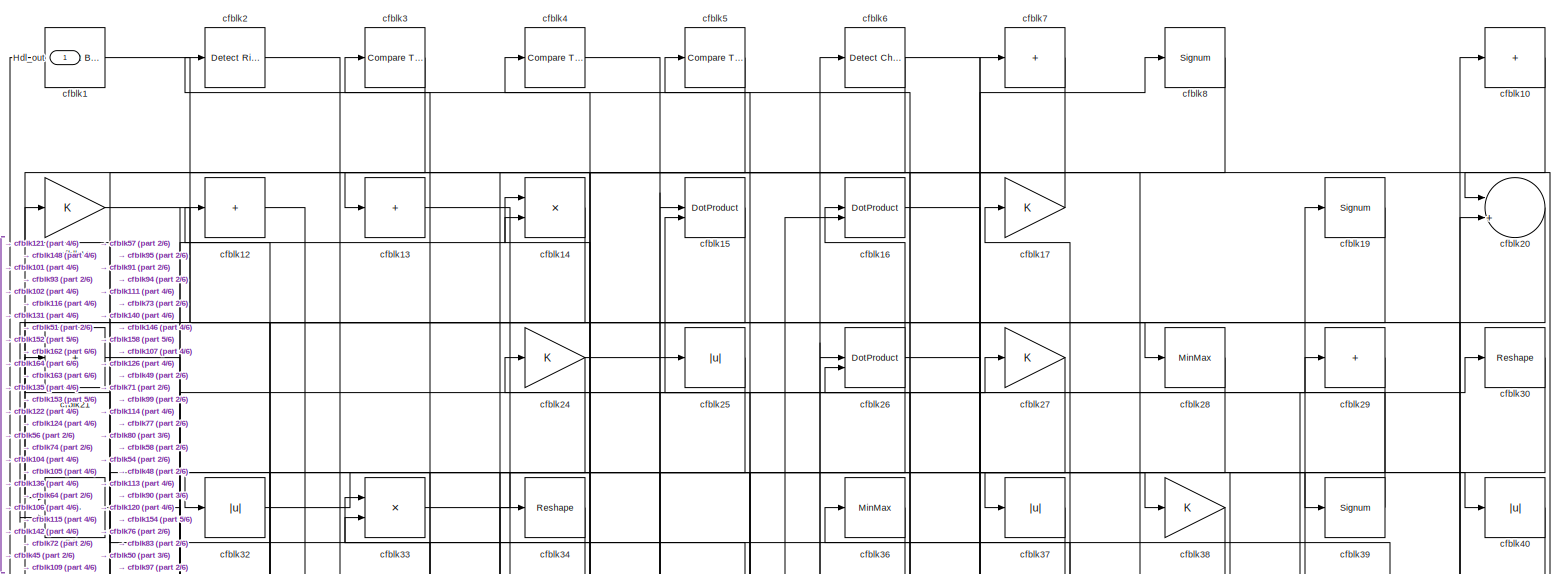
[diagram: root canvas - part 1/6, full width, top band]
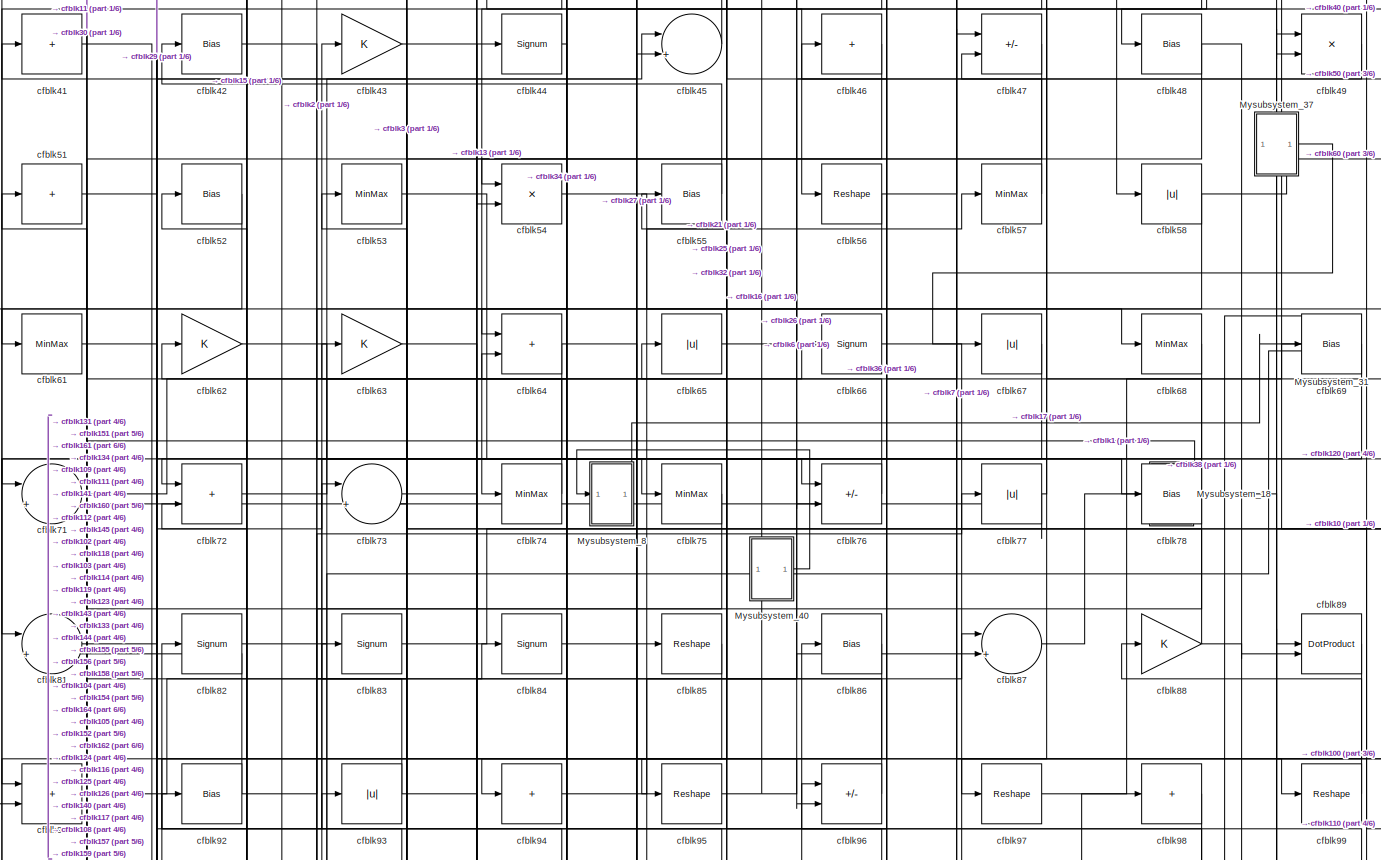
[diagram: root canvas - part 2/6, full width, middle band]
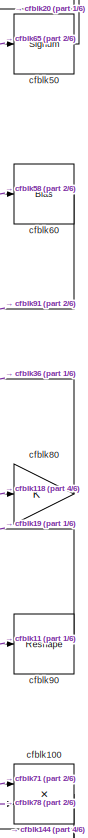
[diagram: root canvas - part 3/6, middle right region]
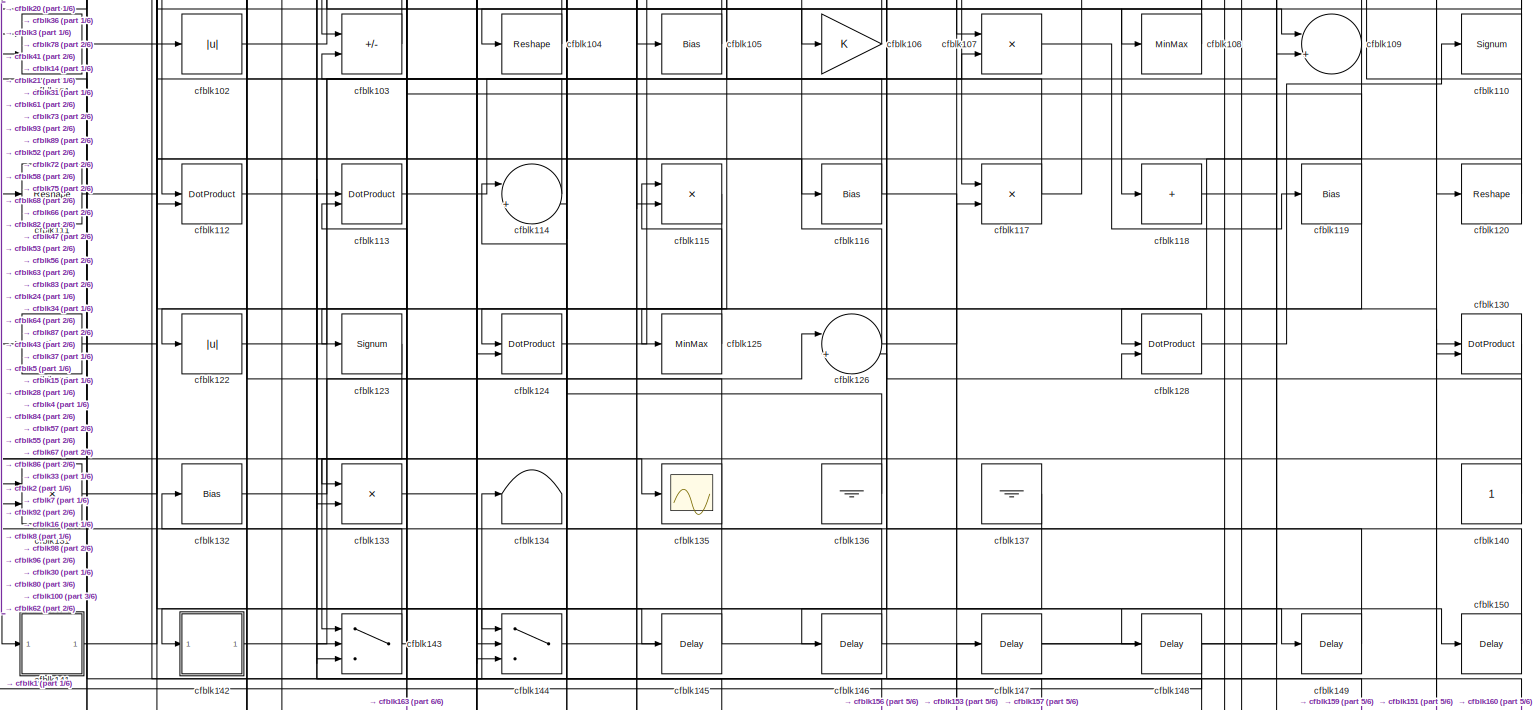
[diagram: root canvas - part 4/6, full width, bottom band]
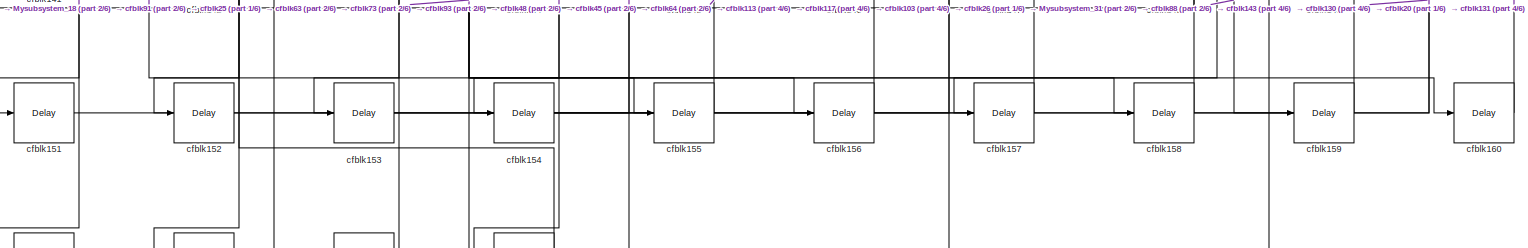
[diagram: root canvas - part 5/6, full width, bottom band]
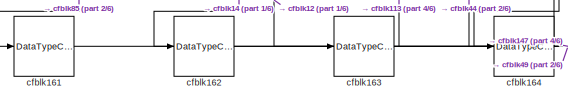
[diagram: root canvas - part 6/6, bottom left region]
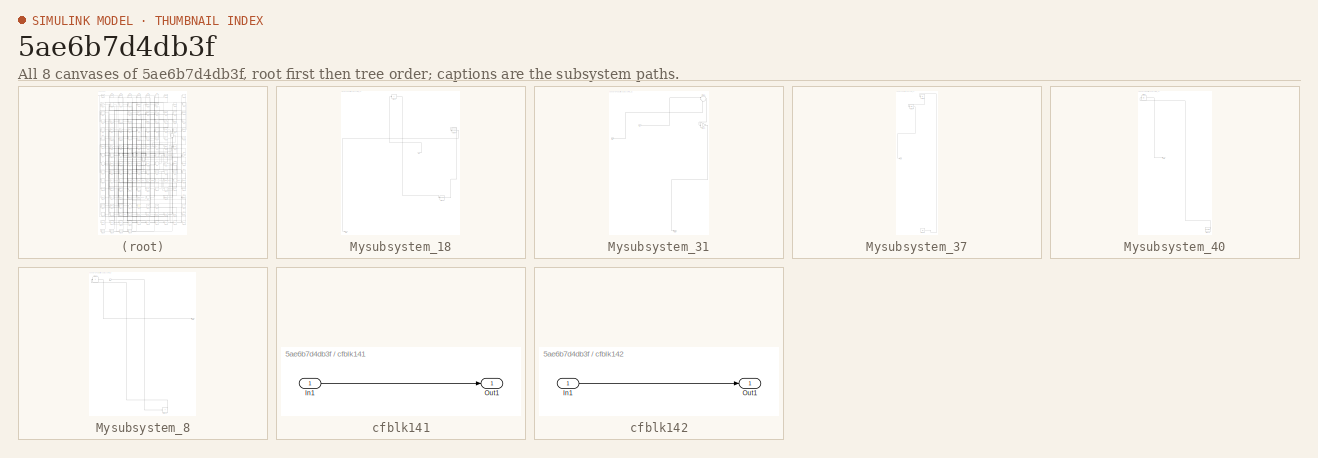
[diagram: thumbnail index - all 8 canvases of the model, root first then tree order]
MODEL slx_5ae6b7d4db3f
KIND model
CONFIG AbsTol = auto
CONFIG EnableMultiTasking = off
CONFIG FixedStep = auto
CONFIG MaxStep = auto
CONFIG MinStep = auto
CONFIG RelTol = 1e-3
CONFIG SampleTimeConstraint = Unconstrained
CONFIG SolverName = VariableStepAuto
CONFIG StartTime = 0.0
CONFIG StopTime = 10.0
BLOCK [Outport] Hdl_out
  OutDataTypeStr = uint8
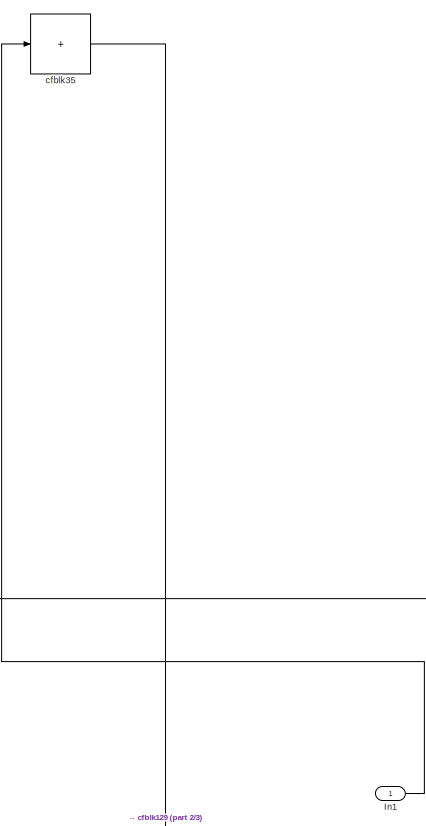
[diagram: Mysubsystem_18 - part 1/3, top center region]
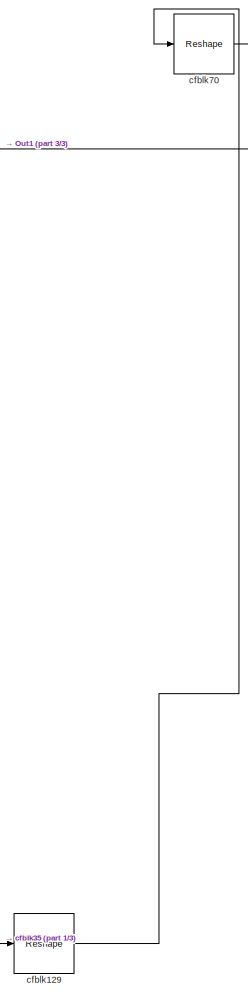
[diagram: Mysubsystem_18 - part 2/3, middle right region]
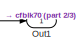
[diagram: Mysubsystem_18 - part 3/3, bottom left region]
BLOCK [SubSystem] Mysubsystem_18
  RTWFcnName = Mysubsystem_18
  RTWFcnNameOpts = User specified
  RTWFileNameOpts = Use function name
  RTWSystemCode = Reusable function
  TreatAsAtomicUnit = on
BLOCK [Inport] Mysubsystem_18/In1
BLOCK [Outport] Mysubsystem_18/Out1
BLOCK [Reshape] Mysubsystem_18/cfblk129
BLOCK [Sum] Mysubsystem_18/cfblk35
  IconShape = rectangular
  Inputs = +
BLOCK [Reshape] Mysubsystem_18/cfblk70
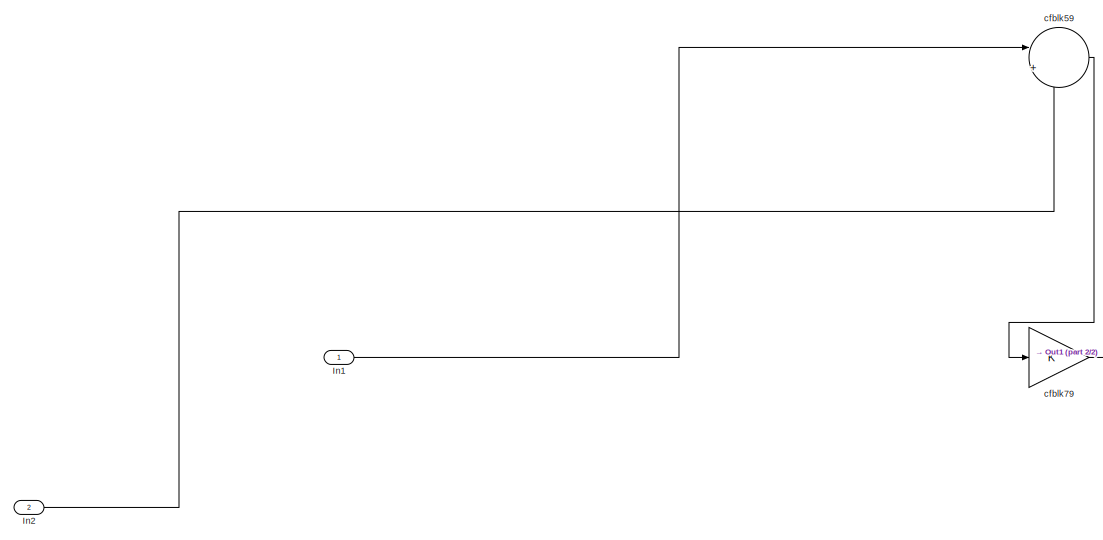
[diagram: Mysubsystem_31 - part 1/2, full width, top band]
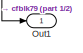
[diagram: Mysubsystem_31 - part 2/2, bottom center region]
BLOCK [SubSystem] Mysubsystem_31
  RTWFcnName = Mysubsystem_31
  RTWFcnNameOpts = User specified
  RTWFileNameOpts = Use function name
  RTWSystemCode = Reusable function
  TreatAsAtomicUnit = on
BLOCK [Inport] Mysubsystem_31/In1
BLOCK [Inport] Mysubsystem_31/In2
  Port = 2
BLOCK [Outport] Mysubsystem_31/Out1
BLOCK [Sum] Mysubsystem_31/cfblk59
  Inputs = |++
BLOCK [Gain] Mysubsystem_31/cfblk79
BLOCK [SubSystem] Mysubsystem_37
  RTWFcnName = Mysubsystem_37
  RTWFcnNameOpts = User specified
  RTWFileNameOpts = Use function name
  RTWSystemCode = Reusable function
  TreatAsAtomicUnit = on
BLOCK [Outport] Mysubsystem_37/Out1
BLOCK [Ground] Mysubsystem_37/cfblk139
BLOCK [Bias] Mysubsystem_37/cfblk18
  Bias = 0.0
  SaturateOnIntegerOverflow = off
BLOCK [Abs] Mysubsystem_37/cfblk9
  SaturateOnIntegerOverflow = off
BLOCK [SubSystem] Mysubsystem_40
  RTWFcnName = Mysubsystem_40
  RTWFcnNameOpts = User specified
  RTWFileNameOpts = Use function name
  RTWSystemCode = Reusable function
  TreatAsAtomicUnit = on
BLOCK [Outport] Mysubsystem_40/Out1
BLOCK [Reference] Mysubsystem_40/cfblk138  REF=hdlsllib/Sources/Counter
Free-Running
  SourceBlock = hdlsllib/Sources/Counter\nFree-Running
  SourceType = Counter Free-Running
BLOCK [Abs] Mysubsystem_40/cfblk23
  SaturateOnIntegerOverflow = off
BLOCK [SubSystem] Mysubsystem_8
  RTWFcnName = Mysubsystem_8
  RTWFcnNameOpts = User specified
  RTWFileNameOpts = Use function name
  RTWSystemCode = Reusable function
  TreatAsAtomicUnit = on
BLOCK [Inport] Mysubsystem_8/In1
BLOCK [Outport] Mysubsystem_8/Out1
BLOCK [Sum] Mysubsystem_8/cfblk127
  IconShape = rectangular
  Inputs = +
BLOCK [Sum] Mysubsystem_8/cfblk22
  IconShape = rectangular
  Inputs = +
BLOCK [Reference] cfblk1  REF=simulink/Logic and Bit
Operations/Extract Bits
  LibrarySourceBlock = hdlsllib/Logic and Bit\nOperations/Extract Bits
  SourceBlock = simulink/Logic and Bit\nOperations/Extract Bits
  SourceType = Extract Bits
BLOCK [Sum] cfblk10
  IconShape = rectangular
  Inputs = +
  OutDataTypeStr = uint8
BLOCK [Product] cfblk100
  Inputs = */
  OutDataTypeStr = uint8
  RndMeth = Zero
  SaturateOnIntegerOverflow = on
BLOCK [Sum] cfblk101
  IconShape = rectangular
  OutDataTypeStr = uint8
BLOCK [Abs] cfblk102
  OutDataTypeStr = uint8
  SaturateOnIntegerOverflow = off
BLOCK [Sum] cfblk103
  IconShape = rectangular
  Inputs = +-
  OutDataTypeStr = uint8
BLOCK [Reshape] cfblk104
BLOCK [Bias] cfblk105
  Bias = 0.0
  SaturateOnIntegerOverflow = off
BLOCK [Gain] cfblk106
  OutDataTypeStr = uint8
BLOCK [Product] cfblk107
  Inputs = */
  OutDataTypeStr = uint8
  RndMeth = Zero
  SaturateOnIntegerOverflow = on
BLOCK [MinMax] cfblk108
  OutDataTypeStr = uint8
BLOCK [Sum] cfblk109
  Inputs = |++
  OutDataTypeStr = uint8
BLOCK [Gain] cfblk11
  OutDataTypeStr = uint8
BLOCK [Signum] cfblk110
BLOCK [Reshape] cfblk111
BLOCK [DotProduct] cfblk112
  OutDataTypeStr = uint8
BLOCK [DotProduct] cfblk113
  OutDataTypeStr = uint8
BLOCK [Sum] cfblk114
  Inputs = |++
  OutDataTypeStr = uint8
BLOCK [Product] cfblk115
  Inputs = */
  OutDataTypeStr = uint8
  RndMeth = Zero
  SaturateOnIntegerOverflow = on
BLOCK [Bias] cfblk116
  Bias = 0.0
  SaturateOnIntegerOverflow = off
BLOCK [Product] cfblk117
  Inputs = */
  OutDataTypeStr = uint8
  RndMeth = Zero
  SaturateOnIntegerOverflow = on
BLOCK [Sum] cfblk118
  IconShape = rectangular
  Inputs = +
  OutDataTypeStr = uint8
BLOCK [Bias] cfblk119
  Bias = 0.0
  SaturateOnIntegerOverflow = off
BLOCK [Sum] cfblk12
  IconShape = rectangular
  Inputs = +
  OutDataTypeStr = uint8
BLOCK [Reshape] cfblk120
BLOCK [Bias] cfblk121
  Bias = 0.0
  SaturateOnIntegerOverflow = off
BLOCK [Abs] cfblk122
  OutDataTypeStr = uint8
  SaturateOnIntegerOverflow = off
BLOCK [Signum] cfblk123
BLOCK [DotProduct] cfblk124
  OutDataTypeStr = uint8
BLOCK [MinMax] cfblk125
  OutDataTypeStr = uint8
BLOCK [Sum] cfblk126
  Inputs = |++
  OutDataTypeStr = uint8
BLOCK [DotProduct] cfblk128
  OutDataTypeStr = uint8
BLOCK [Sum] cfblk13
  IconShape = rectangular
  Inputs = +
  OutDataTypeStr = uint8
BLOCK [DotProduct] cfblk130
  OutDataTypeStr = uint8
BLOCK [Product] cfblk131
  Inputs = */
  OutDataTypeStr = uint8
  RndMeth = Zero
  SaturateOnIntegerOverflow = on
BLOCK [Bias] cfblk132
  Bias = 0.0
  SaturateOnIntegerOverflow = off
BLOCK [Product] cfblk133
  Inputs = */
  OutDataTypeStr = uint8
  RndMeth = Zero
  SaturateOnIntegerOverflow = on
BLOCK [Terminator] cfblk134
BLOCK [Scope] cfblk135
  Floating = off
  NumInputPorts = 1
  ScopeSpecificationString = Simulink.scopes.TimeScopeBlockCfg('CurrentConfiguration', extmgr.ConfigurationSet(extmgr.Configuration('Core','General UI',true),extmgr.Configuration('Core','Source UI',true),extmgr.Configuration('Sources','WiredSimulink',true,'DataLoggingVariableName','ScopeData2','DataLoggingSaveFormat','Array','DataLoggingLimitDataPoints',true,'DataLoggingDecimation','1'),extmgr.Configuration('Visuals','Time Do...<+868ch>
BLOCK [Ground] cfblk136
BLOCK [Ground] cfblk137
BLOCK [Product] cfblk14
  Inputs = */
  OutDataTypeStr = uint8
  RndMeth = Zero
  SaturateOnIntegerOverflow = on
BLOCK [Constant] cfblk140
  OutDataTypeStr = uint8
  SampleTime = -1
BLOCK [SubSystem] cfblk141
  LibrarySourceBlock = hdlsllib/Ports &\nSubsystems/Subsystem
BLOCK [Inport] cfblk141/In1
BLOCK [Outport] cfblk141/Out1
BLOCK [SubSystem] cfblk142
  LibrarySourceBlock = hdlsllib/Ports &\nSubsystems/Subsystem
BLOCK [Inport] cfblk142/In1
BLOCK [Outport] cfblk142/Out1
BLOCK [Switch] cfblk143
  InputSameDT = off
  OutDataTypeStr = uint8
  SaturateOnIntegerOverflow = off
BLOCK [Switch] cfblk144
  InputSameDT = off
  OutDataTypeStr = uint8
  SaturateOnIntegerOverflow = off
BLOCK [Delay] cfblk145
  InputPortMap = u0
  SampleTime = 1
BLOCK [Delay] cfblk146
  InputPortMap = u0
  SampleTime = 1
BLOCK [Delay] cfblk147
  InputPortMap = u0
  SampleTime = 1
BLOCK [Delay] cfblk148
  InputPortMap = u0
  SampleTime = 1
BLOCK [Delay] cfblk149
  InputPortMap = u0
  SampleTime = 1
BLOCK [DotProduct] cfblk15
  OutDataTypeStr = uint8
BLOCK [Delay] cfblk150
  InputPortMap = u0
  SampleTime = 1
BLOCK [Delay] cfblk151
  InputPortMap = u0
  SampleTime = 1
BLOCK [Delay] cfblk152
  InputPortMap = u0
  SampleTime = 1
BLOCK [Delay] cfblk153
  InputPortMap = u0
  SampleTime = 1
BLOCK [Delay] cfblk154
  InputPortMap = u0
  SampleTime = 1
BLOCK [Delay] cfblk155
  InputPortMap = u0
  SampleTime = 1
BLOCK [Delay] cfblk156
  InputPortMap = u0
  SampleTime = 1
BLOCK [Delay] cfblk157
  InputPortMap = u0
  SampleTime = 1
BLOCK [Delay] cfblk158
  InputPortMap = u0
  SampleTime = 1
BLOCK [Delay] cfblk159
  InputPortMap = u0
  SampleTime = 1
BLOCK [DotProduct] cfblk16
  OutDataTypeStr = uint8
BLOCK [Delay] cfblk160
  InputPortMap = u0
  SampleTime = 1
BLOCK [DataTypeConversion] cfblk161
  OutDataTypeStr = uint8
  RndMeth = Floor
  SaturateOnIntegerOverflow = off
BLOCK [DataTypeConversion] cfblk162
  OutDataTypeStr = uint8
  RndMeth = Floor
  SaturateOnIntegerOverflow = off
BLOCK [DataTypeConversion] cfblk163
  OutDataTypeStr = uint8
  RndMeth = Floor
  SaturateOnIntegerOverflow = off
BLOCK [DataTypeConversion] cfblk164
  OutDataTypeStr = uint8
  RndMeth = Floor
  SaturateOnIntegerOverflow = off
BLOCK [Gain] cfblk17
  OutDataTypeStr = uint8
BLOCK [Signum] cfblk19
BLOCK [Reference] cfblk2  REF=hdlsllib/Logic and Bit
Operations/Detect Rise
Positive
  SourceBlock = hdlsllib/Logic and Bit\nOperations/Detect Rise\nPositive
  SourceType = Detect Rise Positive
BLOCK [Sum] cfblk20
  Inputs = |++
  OutDataTypeStr = uint8
BLOCK [Sum] cfblk21
  IconShape = rectangular
  Inputs = +
  OutDataTypeStr = uint8
BLOCK [Gain] cfblk24
  OutDataTypeStr = uint8
BLOCK [Abs] cfblk25
  OutDataTypeStr = uint8
  SaturateOnIntegerOverflow = off
BLOCK [DotProduct] cfblk26
  OutDataTypeStr = uint8
BLOCK [Gain] cfblk27
  OutDataTypeStr = uint8
BLOCK [MinMax] cfblk28
  OutDataTypeStr = uint8
BLOCK [Sum] cfblk29
  IconShape = rectangular
  Inputs = +
  OutDataTypeStr = uint8
BLOCK [Reference] cfblk3  REF=hdlsllib/Logic and Bit
Operations/Compare
To Zero
  SourceBlock = hdlsllib/Logic and Bit\nOperations/Compare\nTo Zero
  SourceType = Compare To Zero
BLOCK [Reshape] cfblk30
BLOCK [Sum] cfblk31
  IconShape = rectangular
  Inputs = +-
  OutDataTypeStr = uint8
BLOCK [Abs] cfblk32
  OutDataTypeStr = uint8
  SaturateOnIntegerOverflow = off
BLOCK [Product] cfblk33
  Inputs = */
  OutDataTypeStr = uint8
  RndMeth = Zero
  SaturateOnIntegerOverflow = on
BLOCK [Reshape] cfblk34
BLOCK [MinMax] cfblk36
  OutDataTypeStr = uint8
BLOCK [Abs] cfblk37
  OutDataTypeStr = uint8
  SaturateOnIntegerOverflow = off
BLOCK [Gain] cfblk38
  OutDataTypeStr = uint8
BLOCK [Signum] cfblk39
BLOCK [Reference] cfblk4  REF=hdlsllib/Logic and Bit
Operations/Compare
To Constant
  SourceBlock = hdlsllib/Logic and Bit\nOperations/Compare\nTo Constant
  SourceType = Compare To Constant
BLOCK [Abs] cfblk40
  OutDataTypeStr = uint8
  SaturateOnIntegerOverflow = off
BLOCK [Sum] cfblk41
  IconShape = rectangular
  Inputs = +
  OutDataTypeStr = uint8
BLOCK [Bias] cfblk42
  Bias = 0.0
  SaturateOnIntegerOverflow = off
BLOCK [Gain] cfblk43
  OutDataTypeStr = uint8
BLOCK [Signum] cfblk44
BLOCK [Sum] cfblk45
  Inputs = |++
  OutDataTypeStr = uint8
BLOCK [Sum] cfblk46
  IconShape = rectangular
  Inputs = +
  OutDataTypeStr = uint8
BLOCK [Sum] cfblk47
  IconShape = rectangular
  Inputs = +-
  OutDataTypeStr = uint8
BLOCK [Bias] cfblk48
  Bias = 0.0
  SaturateOnIntegerOverflow = off
BLOCK [Product] cfblk49
  Inputs = */
  OutDataTypeStr = uint8
  RndMeth = Zero
  SaturateOnIntegerOverflow = on
BLOCK [Reference] cfblk5  REF=hdlsllib/Logic and Bit
Operations/Compare
To Constant
  SourceBlock = hdlsllib/Logic and Bit\nOperations/Compare\nTo Constant
  SourceType = Compare To Constant
BLOCK [Signum] cfblk50
BLOCK [Sum] cfblk51
  IconShape = rectangular
  Inputs = +
  OutDataTypeStr = uint8
BLOCK [Bias] cfblk52
  Bias = 0.0
  SaturateOnIntegerOverflow = off
BLOCK [MinMax] cfblk53
  OutDataTypeStr = uint8
BLOCK [Product] cfblk54
  Inputs = */
  OutDataTypeStr = uint8
  RndMeth = Zero
  SaturateOnIntegerOverflow = on
BLOCK [Bias] cfblk55
  Bias = 0.0
  SaturateOnIntegerOverflow = off
BLOCK [Reshape] cfblk56
BLOCK [MinMax] cfblk57
  OutDataTypeStr = uint8
BLOCK [Abs] cfblk58
  OutDataTypeStr = uint8
  SaturateOnIntegerOverflow = off
BLOCK [Reference] cfblk6  REF=simulink/Logic and Bit
Operations/Detect
Change
  LibrarySourceBlock = hdlsllib/Logic and Bit\nOperations/Detect\nChange
  SourceBlock = simulink/Logic and Bit\nOperations/Detect\nChange
  SourceType = Detect Change
BLOCK [Bias] cfblk60
  Bias = 0.0
  SaturateOnIntegerOverflow = off
BLOCK [MinMax] cfblk61
  OutDataTypeStr = uint8
BLOCK [Gain] cfblk62
  OutDataTypeStr = uint8
BLOCK [Gain] cfblk63
  OutDataTypeStr = uint8
BLOCK [Sum] cfblk64
  IconShape = rectangular
  OutDataTypeStr = uint8
BLOCK [Abs] cfblk65
  OutDataTypeStr = uint8
  SaturateOnIntegerOverflow = off
BLOCK [Signum] cfblk66
BLOCK [Abs] cfblk67
  OutDataTypeStr = uint8
  SaturateOnIntegerOverflow = off
BLOCK [MinMax] cfblk68
  OutDataTypeStr = uint8
BLOCK [Bias] cfblk69
  Bias = 0.0
  SaturateOnIntegerOverflow = off
BLOCK [Sum] cfblk7
  IconShape = rectangular
  Inputs = +
  OutDataTypeStr = uint8
BLOCK [Sum] cfblk71
  Inputs = |++
  OutDataTypeStr = uint8
BLOCK [Sum] cfblk72
  IconShape = rectangular
  OutDataTypeStr = uint8
BLOCK [Sum] cfblk73
  Inputs = |++
  OutDataTypeStr = uint8
BLOCK [MinMax] cfblk74
  OutDataTypeStr = uint8
BLOCK [MinMax] cfblk75
  OutDataTypeStr = uint8
BLOCK [Sum] cfblk76
  IconShape = rectangular
  Inputs = +-
  OutDataTypeStr = uint8
BLOCK [Abs] cfblk77
  OutDataTypeStr = uint8
  SaturateOnIntegerOverflow = off
BLOCK [Bias] cfblk78
  Bias = 0.0
  SaturateOnIntegerOverflow = off
BLOCK [Signum] cfblk8
BLOCK [Gain] cfblk80
  OutDataTypeStr = uint8
BLOCK [Sum] cfblk81
  Inputs = |++
  OutDataTypeStr = uint8
BLOCK [Signum] cfblk82
BLOCK [Signum] cfblk83
BLOCK [Signum] cfblk84
BLOCK [Reshape] cfblk85
BLOCK [Bias] cfblk86
  Bias = 0.0
  SaturateOnIntegerOverflow = off
BLOCK [Sum] cfblk87
  Inputs = |++
  OutDataTypeStr = uint8
BLOCK [Gain] cfblk88
  OutDataTypeStr = uint8
BLOCK [DotProduct] cfblk89
  OutDataTypeStr = uint8
BLOCK [Reshape] cfblk90
BLOCK [Sum] cfblk91
  IconShape = rectangular
  OutDataTypeStr = uint8
BLOCK [Bias] cfblk92
  Bias = 0.0
  SaturateOnIntegerOverflow = off
BLOCK [Abs] cfblk93
  OutDataTypeStr = uint8
  SaturateOnIntegerOverflow = off
BLOCK [Sum] cfblk94
  IconShape = rectangular
  Inputs = +
  OutDataTypeStr = uint8
BLOCK [Reshape] cfblk95
BLOCK [Sum] cfblk96
  IconShape = rectangular
  Inputs = +-
  OutDataTypeStr = uint8
BLOCK [Reshape] cfblk97
BLOCK [Sum] cfblk98
  IconShape = rectangular
  Inputs = +
  OutDataTypeStr = uint8
BLOCK [Reshape] cfblk99
LINE Mysubsystem_18/In1:1 -> Mysubsystem_18/cfblk35:1
LINE Mysubsystem_18/cfblk129:1 -> Mysubsystem_18/cfblk70:1
LINE Mysubsystem_18/cfblk35:1 -> Mysubsystem_18/cfblk129:1
LINE Mysubsystem_18/cfblk70:1 -> Mysubsystem_18/Out1:1
LINE Mysubsystem_18:1 -> cfblk151:1
LINE Mysubsystem_31/In1:1 -> Mysubsystem_31/cfblk59:1
LINE Mysubsystem_31/In2:1 -> Mysubsystem_31/cfblk59:2
LINE Mysubsystem_31/cfblk59:1 -> Mysubsystem_31/cfblk79:1
LINE Mysubsystem_31/cfblk79:1 -> Mysubsystem_31/Out1:1
LINE Mysubsystem_31:1 -> cfblk157:1
LINE Mysubsystem_37/cfblk139:1 -> Mysubsystem_37/cfblk9:1
LINE Mysubsystem_37/cfblk18:1 -> Mysubsystem_37/Out1:1
LINE Mysubsystem_37/cfblk9:1 -> Mysubsystem_37/cfblk18:1
LINE Mysubsystem_37:1 -> cfblk67:1
LINE Mysubsystem_40/cfblk138:1 -> Mysubsystem_40/cfblk23:1
LINE Mysubsystem_40/cfblk23:1 -> Mysubsystem_40/Out1:1
LINE Mysubsystem_40:1 -> Mysubsystem_8:1
LINE Mysubsystem_8/In1:1 -> Mysubsystem_8/cfblk127:1
LINE Mysubsystem_8/cfblk127:1 -> Mysubsystem_8/cfblk22:1
LINE Mysubsystem_8/cfblk22:1 -> Mysubsystem_8/Out1:1
LINE Mysubsystem_8:1 -> Mysubsystem_31:1
LINE cfblk100:1 -> cfblk144:1
LINE cfblk101:1 -> cfblk130:2
LINE cfblk102:1 -> cfblk66:1
LINE cfblk103:1 -> cfblk82:1
LINE cfblk104:1 -> cfblk43:1
LINE cfblk105:1 -> cfblk4:1
LINE cfblk106:1 -> cfblk33:1
LINE cfblk107:1 -> cfblk119:1
LINE cfblk108:1 -> cfblk96:1
NET cfblk109:1 -> cfblk128:1, cfblk5:1
LINE cfblk10:1 -> cfblk54:2
NET cfblk110:1 -> cfblk112:2, cfblk62:1
LINE cfblk111:1 -> cfblk93:1
LINE cfblk112:1 -> cfblk145:1
LINE cfblk113:1 -> cfblk30:1
LINE cfblk114:1 -> cfblk53:1
LINE cfblk115:1 -> cfblk122:1
NET cfblk116:1 -> cfblk150:1, cfblk55:1
NET cfblk117:1 -> cfblk52:1, cfblk98:1
LINE cfblk118:1 -> cfblk80:1
NET cfblk119:1 -> cfblk124:1, cfblk63:1
NET cfblk11:1 -> cfblk76:1, cfblk90:1
LINE cfblk120:1 -> cfblk33:2
NET cfblk121:1 -> cfblk107:2, cfblk148:1, cfblk149:1
LINE cfblk122:1 -> cfblk34:1
LINE cfblk123:1 -> cfblk141:1
LINE cfblk124:1 -> cfblk57:1
LINE cfblk125:1 -> cfblk115:1
NET cfblk126:1 -> cfblk86:1, cfblk8:1
LINE cfblk128:1 -> cfblk110:1
LINE cfblk12:1 -> cfblk163:1
LINE cfblk130:1 -> cfblk143:1
LINE cfblk131:1 -> cfblk14:1
LINE cfblk132:1 -> cfblk126:1
LINE cfblk133:1 -> cfblk87:1
LINE cfblk136:1 -> cfblk14:2
LINE cfblk137:1 -> cfblk142:1
LINE cfblk13:1 -> cfblk56:1
NET cfblk140:1 -> cfblk128:2, cfblk2:1, cfblk92:1
LINE cfblk141/In1:1 -> cfblk141/Out1:1
LINE cfblk141:1 -> cfblk73:1
LINE cfblk142/In1:1 -> cfblk142/Out1:1
LINE cfblk142:1 -> cfblk15:1
NET cfblk143:1 -> cfblk132:1, cfblk83:1
LINE cfblk144:1 -> cfblk89:1
LINE cfblk145:1 -> cfblk72:2
LINE cfblk146:1 -> cfblk114:1
LINE cfblk147:1 -> cfblk109:2
LINE cfblk148:1 -> cfblk1:1
LINE cfblk149:1 -> cfblk101:2
LINE cfblk14:1 -> cfblk162:1
LINE cfblk150:1 -> cfblk126:2
LINE cfblk151:1 -> cfblk130:1
LINE cfblk152:1 -> cfblk45:2
LINE cfblk153:1 -> cfblk117:2
LINE cfblk154:1 -> cfblk20:2
LINE cfblk155:1 -> cfblk64:2
LINE cfblk156:1 -> cfblk113:1
LINE cfblk157:1 -> cfblk103:2
LINE cfblk158:1 -> cfblk26:2
LINE cfblk159:1 -> cfblk143:2
LINE cfblk15:1 -> cfblk72:1
LINE cfblk160:1 -> cfblk131:2
NET cfblk161:1 -> cfblk44:1, cfblk49:1
LINE cfblk162:1 -> cfblk85:1
NET cfblk163:1 -> cfblk113:2, cfblk147:1
LINE cfblk164:1 -> cfblk12:1
LINE cfblk16:1 -> cfblk107:1
LINE cfblk17:1 -> cfblk13:1
LINE cfblk19:1 -> cfblk31:2
NET cfblk1:1 -> cfblk28:1, cfblk58:1
LINE cfblk20:1 -> cfblk121:1
LINE cfblk21:1 -> cfblk102:1
NET cfblk24:1 -> cfblk124:2, cfblk15:2
NET cfblk25:1 -> cfblk152:1, cfblk153:1
NET cfblk26:1 -> cfblk16:1, cfblk39:1, cfblk95:1
LINE cfblk27:1 -> cfblk37:1
LINE cfblk28:1 -> cfblk115:2
LINE cfblk29:1 -> cfblk48:1
NET cfblk2:1 -> cfblk135:1, cfblk76:2
LINE cfblk30:1 -> cfblk91:1
LINE cfblk31:1 -> cfblk116:1
LINE cfblk32:1 -> cfblk38:1
LINE cfblk33:1 -> cfblk40:1
LINE cfblk34:1 -> cfblk74:1
NET cfblk36:1 -> cfblk111:1, cfblk73:2
LINE cfblk37:1 -> cfblk114:2
LINE cfblk38:1 -> cfblk54:1
LINE cfblk39:1 -> cfblk24:1
LINE cfblk3:1 -> cfblk101:1
LINE cfblk40:1 -> cfblk97:1
LINE cfblk41:1 -> cfblk134:1
LINE cfblk42:1 -> cfblk75:1
LINE cfblk43:1 -> cfblk144:2
LINE cfblk44:1 -> cfblk164:1
LINE cfblk45:1 -> cfblk21:1
LINE cfblk46:1 -> cfblk71:1
LINE cfblk47:1 -> cfblk133:1
NET cfblk48:1 -> cfblk154:1, cfblk89:2
LINE cfblk49:1 -> cfblk47:2
LINE cfblk4:1 -> cfblk106:1
LINE cfblk50:1 -> cfblk20:1
LINE cfblk51:1 -> cfblk29:1
LINE cfblk52:1 -> cfblk61:1
LINE cfblk53:1 -> cfblk120:1
LINE cfblk54:1 -> cfblk68:1
LINE cfblk55:1 -> cfblk42:1
NET cfblk56:1 -> cfblk123:1, cfblk47:1
LINE cfblk57:1 -> cfblk32:1
NET cfblk58:1 -> cfblk143:3, cfblk60:1
LINE cfblk5:1 -> cfblk104:1
LINE cfblk60:1 -> cfblk91:2
LINE cfblk61:1 -> cfblk109:1
LINE cfblk62:1 -> cfblk78:1
LINE cfblk63:1 -> cfblk158:1
NET cfblk64:1 -> cfblk144:3, cfblk96:2
LINE cfblk65:1 -> cfblk50:1
LINE cfblk66:1 -> cfblk117:1
LINE cfblk67:1 -> cfblk125:1
LINE cfblk68:1 -> cfblk103:1
LINE cfblk69:1 -> cfblk81:1
NET cfblk6:1 -> cfblk49:2, cfblk64:1, cfblk99:1
NET cfblk71:1 -> cfblk100:1, cfblk7:1
LINE cfblk72:1 -> cfblk27:1
LINE cfblk73:1 -> cfblk156:1
LINE cfblk74:1 -> cfblk3:1
LINE cfblk75:1 -> cfblk133:2
NET cfblk76:1 -> cfblk25:1, cfblk51:1
NET cfblk77:1 -> cfblk17:1, cfblk71:2
NET cfblk78:1 -> cfblk100:2, cfblk131:1, cfblk46:1
LINE cfblk7:1 -> cfblk146:1
LINE cfblk80:1 -> cfblk36:1
LINE cfblk81:1 -> cfblk45:1
NET cfblk82:1 -> Mysubsystem_31:2, cfblk118:1
LINE cfblk83:1 -> cfblk10:1
LINE cfblk84:1 -> cfblk105:1
LINE cfblk85:1 -> cfblk161:1
LINE cfblk86:1 -> cfblk94:1
LINE cfblk87:1 -> Mysubsystem_18:1
NET cfblk88:1 -> cfblk159:1, cfblk41:1
LINE cfblk89:1 -> cfblk112:1
LINE cfblk8:1 -> cfblk31:1
LINE cfblk90:1 -> cfblk19:1
NET cfblk91:1 -> cfblk160:1, cfblk6:1
NET cfblk92:1 -> cfblk77:1, cfblk81:2, cfblk84:1
NET cfblk93:1 -> cfblk11:1, cfblk155:1
LINE cfblk94:1 -> cfblk26:1
NET cfblk95:1 -> cfblk16:2, cfblk87:2
LINE cfblk96:1 -> cfblk65:1
LINE cfblk97:1 -> cfblk69:1
LINE cfblk98:1 -> cfblk108:1
LINE cfblk99:1 -> cfblk88:1
note: NET lines group one-source signal fan-out (src -> all destinations, sorted); 1:1 wires keep LINE
